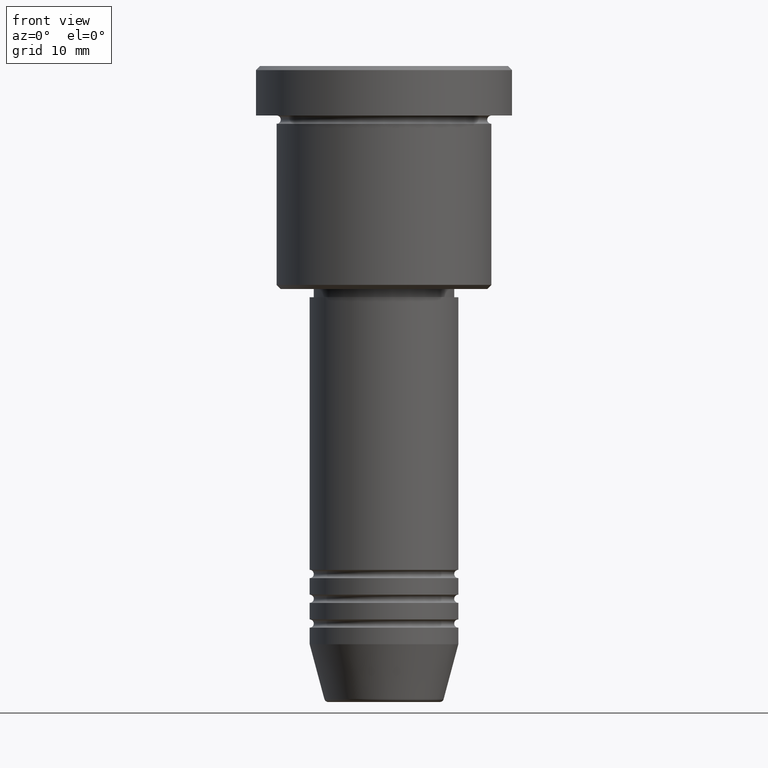
[diagram: clean part render]
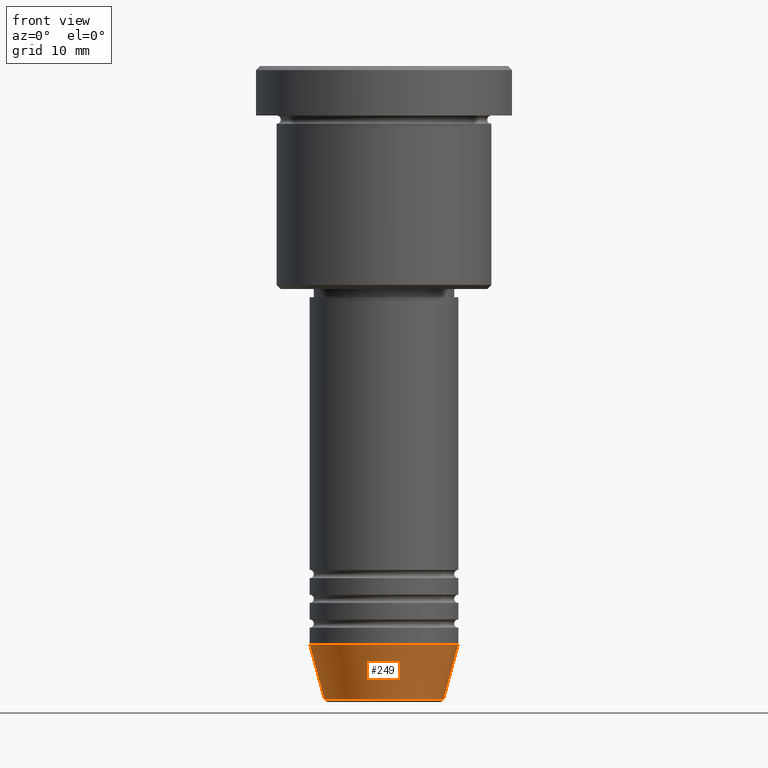
[diagram: same view with one face highlighted and labeled with its STEP entity id]
A machine part, front view. The second image highlights one B-rep face of the part: STEP entity #249.
In plain terms, the highlighted conical surface has half-angle 15 deg.
Its self-contained STEP definition (entity closure, byte-faithful):
#10 = AXIS2_PLACEMENT_3D ( 'NONE', #1140, #685, #165 ) ;
#15 = CARTESIAN_POINT ( 'NONE',  ( 0.000000000000000000, 0.000000000000000000, -76.62940952255127058 ) ) ;
#75 = VERTEX_POINT ( 'NONE', #342 ) ;
#114 = DIRECTION ( 'NONE',  ( -0.2588190451025213501, 3.169619151431772337E-17, 0.9659258262890680902 ) ) ;
#121 = EDGE_CURVE ( 'NONE', #569, #442, #634, .T. ) ;
#134 = ORIENTED_EDGE ( 'NONE', *, *, #235, .T. ) ;
#145 = FACE_OUTER_BOUND ( 'NONE', #1010, .T. ) ;
#165 = DIRECTION ( 'NONE',  ( 1.000000000000000000, 0.000000000000000000, 0.000000000000000000 ) ) ;
#168 = VERTEX_POINT ( 'NONE', #764 ) ;
#210 = LINE ( 'NONE', #753, #433 ) ;
#212 = VECTOR ( 'NONE', #1061, 1000.000000000000000 ) ;
#219 = ORIENTED_EDGE ( 'NONE', *, *, #705, .F. ) ;
#235 = EDGE_CURVE ( 'NONE', #442, #75, #444, .T. ) ;
#241 = DIRECTION ( 'NONE',  ( -0.000000000000000000, -0.000000000000000000, 1.000000000000000000 ) ) ;
#249 = ADVANCED_FACE ( 'NONE', ( #145 ), #1077, .T. ) ;
#342 = CARTESIAN_POINT ( 'NONE',  ( 9.000000000000000000, 0.000000000000000000, -70.00000000000000000 ) ) ;
#345 = CARTESIAN_POINT ( 'NONE',  ( 0.000000000000000000, 0.000000000000000000, -70.00000000000000000 ) ) ;
#433 = VECTOR ( 'NONE', #114, 1000.000000000000000 ) ;
#442 = VERTEX_POINT ( 'NONE', #461 ) ;
#444 = LINE ( 'NONE', #524, #212 ) ;
#461 = CARTESIAN_POINT ( 'NONE',  ( 7.223655072137188604, 0.000000000000000000, -76.62940952255127058 ) ) ;
#524 = CARTESIAN_POINT ( 'NONE',  ( 9.000000000000000000, 0.000000000000000000, -70.00000000000000000 ) ) ;
#569 = VERTEX_POINT ( 'NONE', #574 ) ;
#574 = CARTESIAN_POINT ( 'NONE',  ( -7.223655072137189492, 9.934123627281765110E-16, -76.62940952255127058 ) ) ;
#634 = CIRCLE ( 'NONE', #913, 7.223655072137188604 ) ;
#664 = AXIS2_PLACEMENT_3D ( 'NONE', #345, #241, #1053 ) ;
#685 = DIRECTION ( 'NONE',  ( -0.000000000000000000, -0.000000000000000000, 1.000000000000000000 ) ) ;
#700 = CIRCLE ( 'NONE', #664, 9.000000000000000000 ) ;
#705 = EDGE_CURVE ( 'NONE', #168, #75, #700, .T. ) ;
#753 = CARTESIAN_POINT ( 'NONE',  ( -9.000000000000000000, 1.102182119232617714E-15, -70.00000000000000000 ) ) ;
#764 = CARTESIAN_POINT ( 'NONE',  ( -9.000000000000000000, 1.102182119232617714E-15, -70.00000000000000000 ) ) ;
#770 = DIRECTION ( 'NONE',  ( -0.000000000000000000, -0.000000000000000000, 1.000000000000000000 ) ) ;
#828 = DIRECTION ( 'NONE',  ( 1.000000000000000000, 0.000000000000000000, 0.000000000000000000 ) ) ;
#913 = AXIS2_PLACEMENT_3D ( 'NONE', #15, #770, #828 ) ;
#966 = EDGE_CURVE ( 'NONE', #569, #168, #210, .T. ) ;
#1010 = EDGE_LOOP ( 'NONE', ( #1068, #1052, #134, #219 ) ) ;
#1052 = ORIENTED_EDGE ( 'NONE', *, *, #121, .T. ) ;
#1053 = DIRECTION ( 'NONE',  ( 1.000000000000000000, 0.000000000000000000, 0.000000000000000000 ) ) ;
#1061 = DIRECTION ( 'NONE',  ( 0.2588190451025213501, 0.000000000000000000, 0.9659258262890680902 ) ) ;
#1068 = ORIENTED_EDGE ( 'NONE', *, *, #966, .F. ) ;
#1077 = CONICAL_SURFACE ( 'NONE', #10, 9.000000000000000000, 0.2617993877991500740 ) ;
#1140 = CARTESIAN_POINT ( 'NONE',  ( 0.000000000000000000, 0.000000000000000000, -70.00000000000000000 ) ) ;